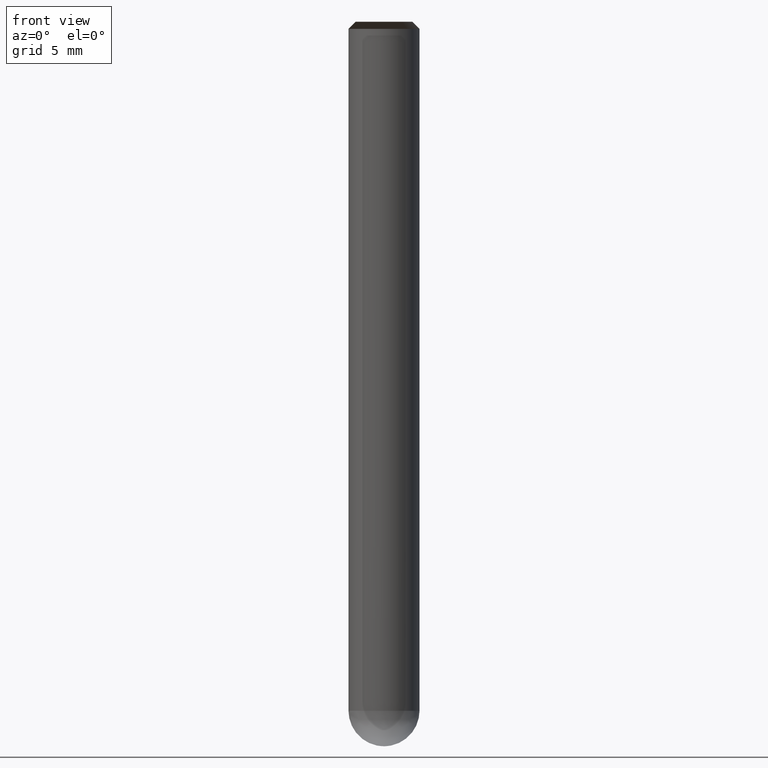
[diagram: clean part render]
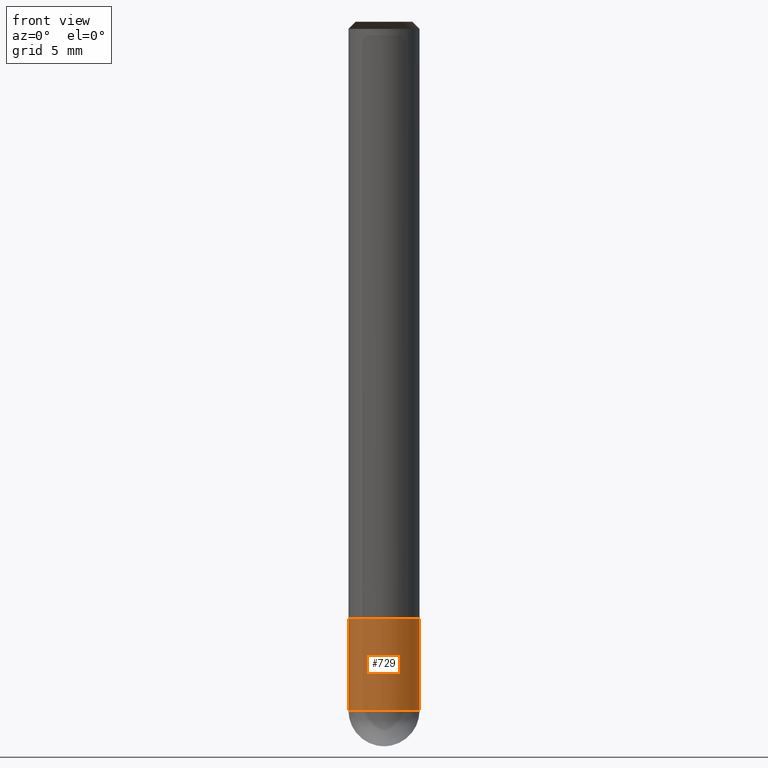
[diagram: same view with one face highlighted and labeled with its STEP entity id]
A machine part, front view. The second image highlights one B-rep face of the part: STEP entity #729.
In plain terms, the highlighted face is a freeform B-spline surface patch.
Its self-contained STEP definition (entity closure, byte-faithful):
#590=CARTESIAN_POINT('',(2.5,0.0,-11.5));
#594=CARTESIAN_POINT('',(-2.5,0.0,-11.5));
#595=CARTESIAN_POINT('',(2.5,0.0,-5.0));
#599=CARTESIAN_POINT('',(-2.5,0.0,-5.0));
#604=CARTESIAN_POINT('',(-2.5,-2.5,-11.5));
#605=CARTESIAN_POINT('',(0.0,-2.5,-11.5));
#606=CARTESIAN_POINT('',(2.5,-2.5,-11.5));
#607=CARTESIAN_POINT('',(-2.5,-2.5,-5.0));
#608=CARTESIAN_POINT('',(0.0,-2.5,-5.0));
#609=CARTESIAN_POINT('',(2.5,-2.5,-5.0));
#710=(
BOUNDED_SURFACE()
B_SPLINE_SURFACE(1,2,(
(#594,#604,#605,#606,#590),
(#599,#607,#608,#609,#595)
), .UNSPECIFIED.,.F.,.F.,.F.)
B_SPLINE_SURFACE_WITH_KNOTS((2,2),(3,2,3),(
0.0,1.0),(
0.0,0.5,1.0), .UNSPECIFIED.)
GEOMETRIC_REPRESENTATION_ITEM()
RATIONAL_B_SPLINE_SURFACE(((1.0,0.707106781187,1.0,0.707106781187,1.0),
(1.0,0.707106781187,1.0,0.707106781187,1.0)
))
REPRESENTATION_ITEM('')
SURFACE()
);
#711=(
BOUNDED_CURVE()
B_SPLINE_CURVE(2,(#590,#606,#605,#604,#594),.UNSPECIFIED.,.F.,.F.)
B_SPLINE_CURVE_WITH_KNOTS((3,2,3),
(0.0,0.5,1.0),.UNSPECIFIED.)
CURVE()
GEOMETRIC_REPRESENTATION_ITEM()
RATIONAL_B_SPLINE_CURVE((1.0,0.707106781187,1.0,0.707106781187,1.0))
REPRESENTATION_ITEM('')
);
#712=(
BOUNDED_CURVE()
B_SPLINE_CURVE(1,(#594,#599),.UNSPECIFIED.,.F.,.F.)
B_SPLINE_CURVE_WITH_KNOTS((2,2),
(0.0,1.0),.UNSPECIFIED.)
CURVE()
GEOMETRIC_REPRESENTATION_ITEM()
RATIONAL_B_SPLINE_CURVE((1.0,1.0))
REPRESENTATION_ITEM('')
);
#713=(
BOUNDED_CURVE()
B_SPLINE_CURVE(2,(#599,#607,#608,#609,#595),.UNSPECIFIED.,.F.,.F.)
B_SPLINE_CURVE_WITH_KNOTS((3,2,3),
(0.0,0.5,1.0),.UNSPECIFIED.)
CURVE()
GEOMETRIC_REPRESENTATION_ITEM()
RATIONAL_B_SPLINE_CURVE((1.0,0.707106781187,1.0,0.707106781187,1.0))
REPRESENTATION_ITEM('')
);
#714=(
BOUNDED_CURVE()
B_SPLINE_CURVE(1,(#595,#590),.UNSPECIFIED.,.F.,.F.)
B_SPLINE_CURVE_WITH_KNOTS((2,2),
(0.0,1.0),.UNSPECIFIED.)
CURVE()
GEOMETRIC_REPRESENTATION_ITEM()
RATIONAL_B_SPLINE_CURVE((1.0,1.0))
REPRESENTATION_ITEM('')
);
#715=VERTEX_POINT('',#590);
#716=VERTEX_POINT('',#594);
#717=VERTEX_POINT('',#595);
#718=VERTEX_POINT('',#599);
#719=EDGE_CURVE('',#715,#716,#711,.T.);
#720=EDGE_CURVE('',#716,#718,#712,.T.);
#721=EDGE_CURVE('',#718,#717,#713,.T.);
#722=EDGE_CURVE('',#717,#715,#714,.T.);
#723=ORIENTED_EDGE('',*,*,#719,.T.);
#724=ORIENTED_EDGE('',*,*,#720,.T.);
#725=ORIENTED_EDGE('',*,*,#721,.T.);
#726=ORIENTED_EDGE('',*,*,#722,.T.);
#727=EDGE_LOOP('',(#723,#724,#725,#726));
#728=FACE_OUTER_BOUND('',#727,.T.);
#729=ADVANCED_FACE('',(#728),#710,.T.);